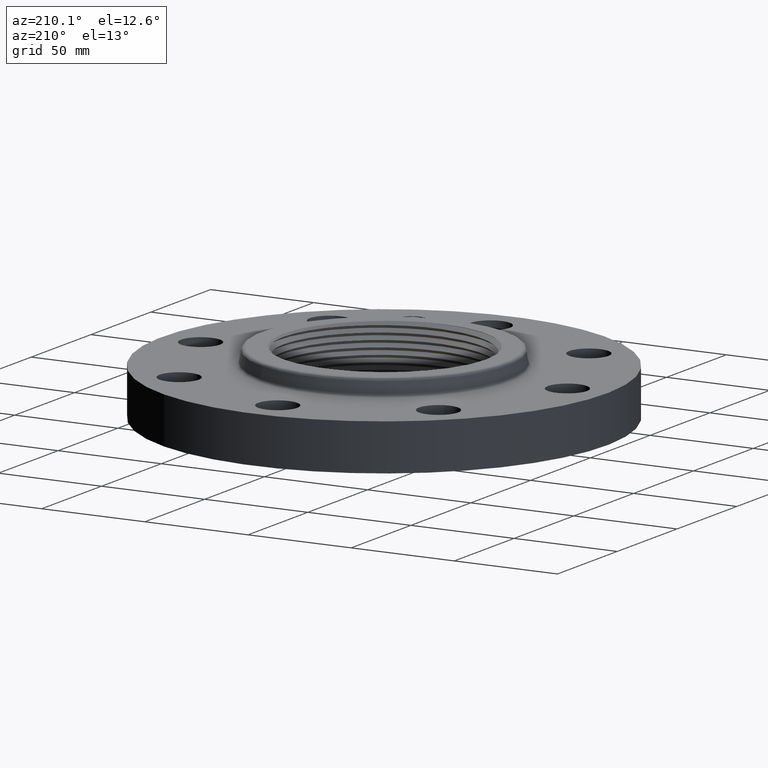
[diagram: clean part render]
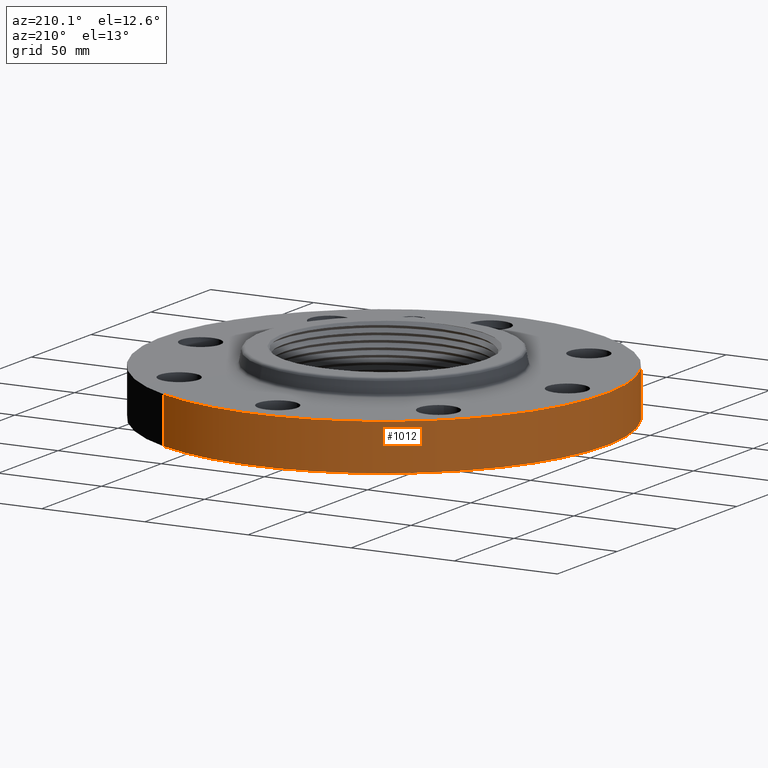
[diagram: same view with one face highlighted and labeled with its STEP entity id]
A machine part, auxiliary view. The second image highlights one B-rep face of the part: STEP entity #1012.
In plain terms, the highlighted cylindrical surface (partial cylindrical patch) has radius 107.95 mm, axis along (0, 0, -1).
Its self-contained STEP definition (entity closure, byte-faithful):
#731=AXIS2_PLACEMENT_3D('Circle Axis2P3D',#729,#730,$) ;
#973=AXIS2_PLACEMENT_3D('Cylinder Axis2P3D',#970,#971,#972) ;
#1003=AXIS2_PLACEMENT_3D('Circle Axis2P3D',#1001,#1002,$) ;
#729=CARTESIAN_POINT('Axis2P3D Location',(0.,0.,0.)) ;
#733=CARTESIAN_POINT('Vertex',(-2.03755853908,-3.72972588805,5.59482469102E-016)) ;
#735=CARTESIAN_POINT('Vertex',(2.03755853908,3.72972588805,5.59482469102E-016)) ;
#970=CARTESIAN_POINT('Axis2P3D Location',(0.,0.,0.563750000002)) ;
#975=CARTESIAN_POINT('Line Origine',(2.03755853908,3.72972588805,0.440000000002)) ;
#979=CARTESIAN_POINT('Vertex',(2.03755853908,3.72972588805,0.880000000004)) ;
#986=CARTESIAN_POINT('Vertex',(-2.03755853908,-3.72972588805,0.880000000004)) ;
#989=CARTESIAN_POINT('Line Origine',(-2.03755853908,-3.72972588805,0.440000000002)) ;
#1001=CARTESIAN_POINT('Axis2P3D Location',(0.,0.,0.880000000004)) ;
#730=DIRECTION('Axis2P3D Direction',(0.,0.,-0.0393700787402)) ;
#971=DIRECTION('Axis2P3D Direction',(0.,0.,-0.0393700787402)) ;
#972=DIRECTION('Axis2P3D XDirection',(-0.0188750212049,-0.0345504945626,0.)) ;
#976=DIRECTION('Vector Direction',(0.,0.,-0.0393700787402)) ;
#990=DIRECTION('Vector Direction',(0.,0.,-0.0393700787402)) ;
#1002=DIRECTION('Axis2P3D Direction',(0.,0.,-0.0393700787402)) ;
#977=VECTOR('Line Direction',#976,0.0393700787402) ;
#991=VECTOR('Line Direction',#990,0.0393700787402) ;
#1007=ORIENTED_EDGE('',*,*,#737,.F.) ;
#1008=ORIENTED_EDGE('',*,*,#993,.T.) ;
#1009=ORIENTED_EDGE('',*,*,#1005,.T.) ;
#1010=ORIENTED_EDGE('',*,*,#981,.F.) ;
#1012=ADVANCED_FACE('PartBody',(#1011),#974,.T.) ;
#732=CIRCLE('generated circle',#731,4.25000000002) ;
#1004=CIRCLE('generated circle',#1003,4.25000000002) ;
#974=CYLINDRICAL_SURFACE('generated cylinder',#973,4.25000000002) ;
#737=EDGE_CURVE('',#734,#736,#732,.T.) ;
#981=EDGE_CURVE('',#736,#980,#978,.F.) ;
#993=EDGE_CURVE('',#734,#987,#992,.F.) ;
#1005=EDGE_CURVE('',#987,#980,#1004,.T.) ;
#1006=EDGE_LOOP('',(#1007,#1008,#1009,#1010)) ;
#1011=FACE_OUTER_BOUND('',#1006,.T.) ;
#978=LINE('Line',#975,#977) ;
#992=LINE('Line',#989,#991) ;
#734=VERTEX_POINT('',#733) ;
#736=VERTEX_POINT('',#735) ;
#980=VERTEX_POINT('',#979) ;
#987=VERTEX_POINT('',#986) ;